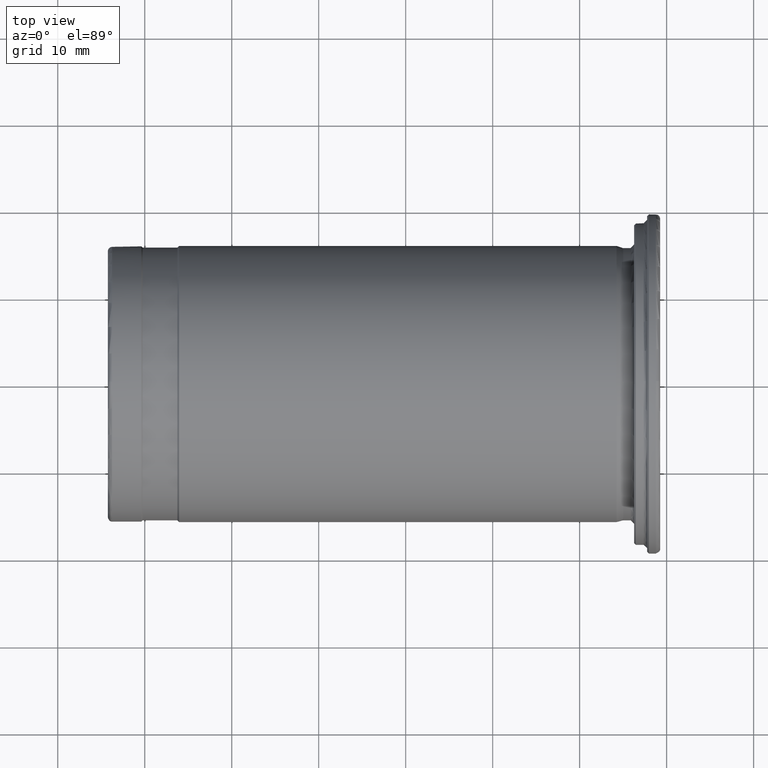
[diagram: clean part render]
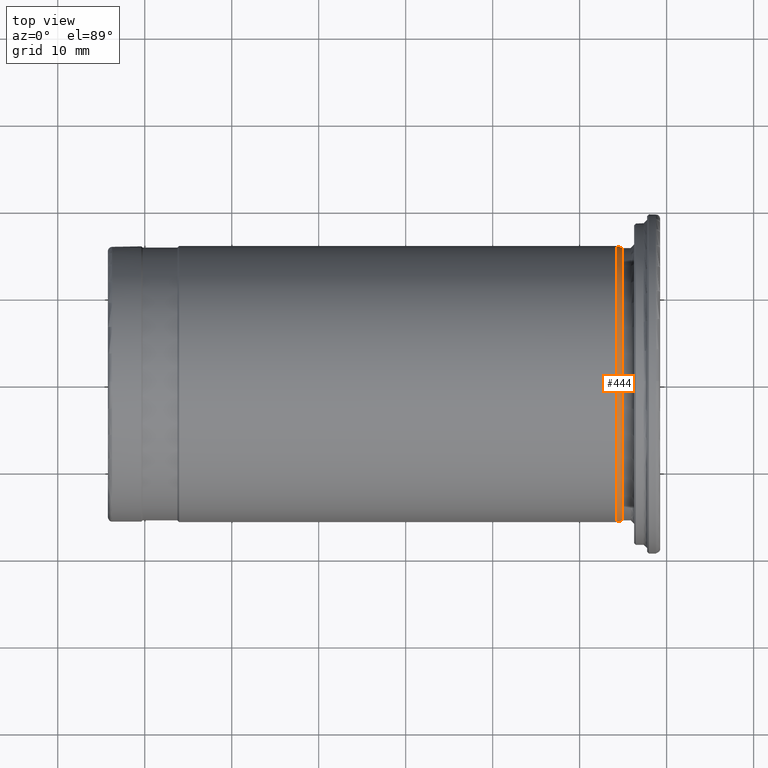
[diagram: same view with one face highlighted and labeled with its STEP entity id]
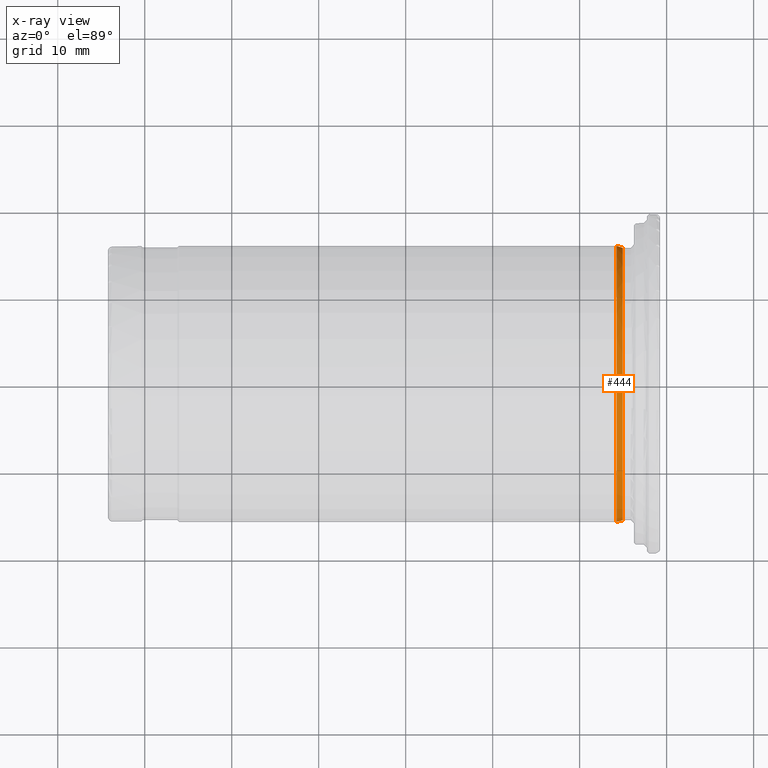
[diagram: x-ray of the same camera — body ghosted, the highlighted face saturated]
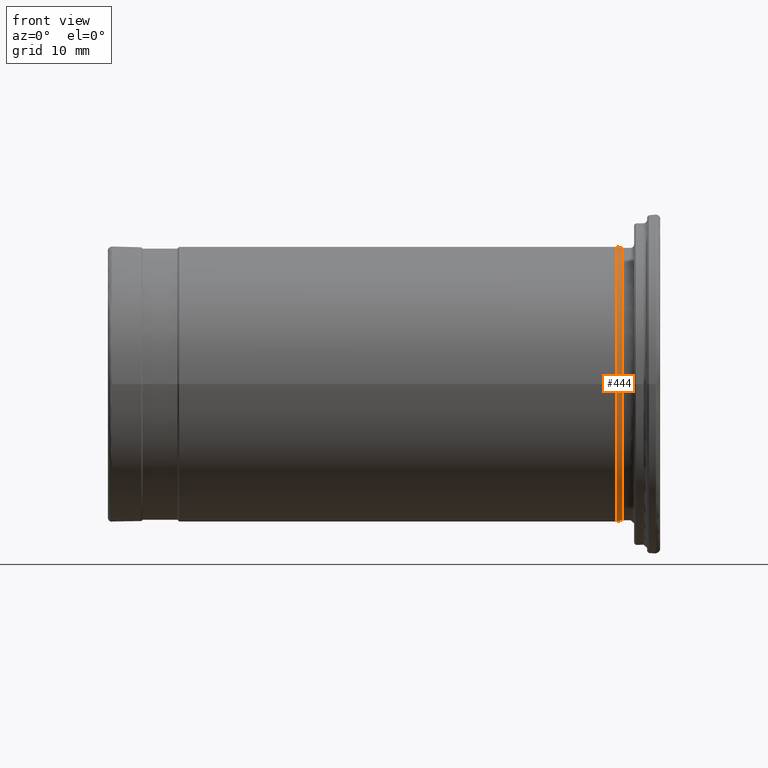
[diagram: same view with one face highlighted and labeled with its STEP entity id]
A machine part, top view. The second image highlights one B-rep face of the part: STEP entity #444.
The next image is the same camera in x-ray: the body ghosted, the highlighted face saturated — about 0% of this face is hidden behind the body in this view.
A second angle (front view) of the same face is appended — the face is thin or edge-on in the first view.
In plain terms, the highlighted conical surface has half-angle 15 deg.
Its self-contained STEP definition (entity closure, byte-faithful):
#36=CONICAL_SURFACE('',#518,15.7818148347441,0.261799387799245);
#53=FACE_OUTER_BOUND('',#83,.T.);
#83=EDGE_LOOP('',(#350,#351,#352,#353,#354));
#111=LINE('',#806,#127);
#127=VECTOR('',#647,15.7818148347441);
#155=CIRCLE('',#517,15.8750000000006);
#156=CIRCLE('',#519,15.6886296694867);
#157=CIRCLE('',#520,15.6886296694867);
#202=VERTEX_POINT('',#799);
#203=VERTEX_POINT('',#803);
#204=VERTEX_POINT('',#804);
#254=EDGE_CURVE('',#202,#202,#155,.T.);
#256=EDGE_CURVE('',#203,#204,#156,.T.);
#257=EDGE_CURVE('',#203,#202,#111,.T.);
#258=EDGE_CURVE('',#204,#203,#157,.T.);
#350=ORIENTED_EDGE('',*,*,#256,.F.);
#351=ORIENTED_EDGE('',*,*,#257,.T.);
#352=ORIENTED_EDGE('',*,*,#254,.T.);
#353=ORIENTED_EDGE('',*,*,#257,.F.);
#354=ORIENTED_EDGE('',*,*,#258,.F.);
#444=ADVANCED_FACE('',(#53),#36,.T.);
#517=AXIS2_PLACEMENT_3D('',#800,#640,#641);
#518=AXIS2_PLACEMENT_3D('',#802,#643,#644);
#519=AXIS2_PLACEMENT_3D('',#805,#645,#646);
#520=AXIS2_PLACEMENT_3D('',#807,#648,#649);
#640=DIRECTION('center_axis',(1.,0.,0.));
#641=DIRECTION('ref_axis',(0.,0.,-1.));
#643=DIRECTION('center_axis',(-1.,0.,0.));
#644=DIRECTION('ref_axis',(0.,1.,0.));
#645=DIRECTION('center_axis',(1.,0.,0.));
#646=DIRECTION('ref_axis',(0.,0.,-1.));
#647=DIRECTION('',(-0.965925826289044,-0.258819045102613,-3.1696191514329E-17));
#648=DIRECTION('center_axis',(1.,0.,0.));
#649=DIRECTION('ref_axis',(0.,0.,-1.));
#799=CARTESIAN_POINT('',(-5.74339361227828,-15.8750000000001,-1.94412679364644E-15));
#800=CARTESIAN_POINT('Origin',(-5.74339361227828,0.,0.));
#802=CARTESIAN_POINT('Origin',(-5.39562184102602,0.,0.));
#803=CARTESIAN_POINT('',(-5.04785006977396,-15.6886296694867,-1.92130301077451E-15));
#804=CARTESIAN_POINT('',(-5.04785006977396,-1.92130301077451E-15,15.6886296694867));
#805=CARTESIAN_POINT('Origin',(-5.04785006977396,0.,0.));
#806=CARTESIAN_POINT('',(-5.39562184102602,-15.7818148347441,-1.93271490221055E-15));
#807=CARTESIAN_POINT('Origin',(-5.04785006977396,0.,0.));